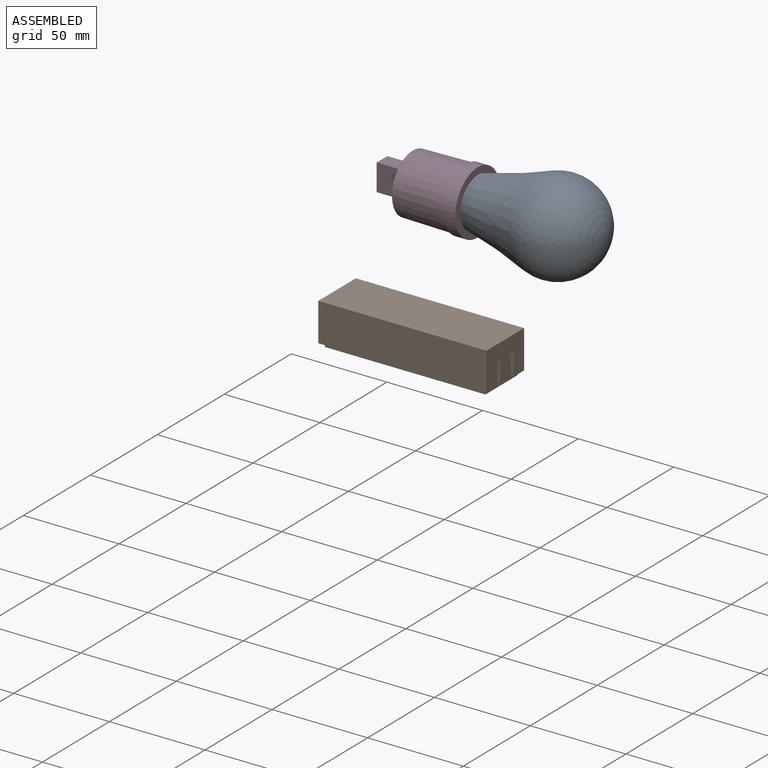
[diagram: assembled view]
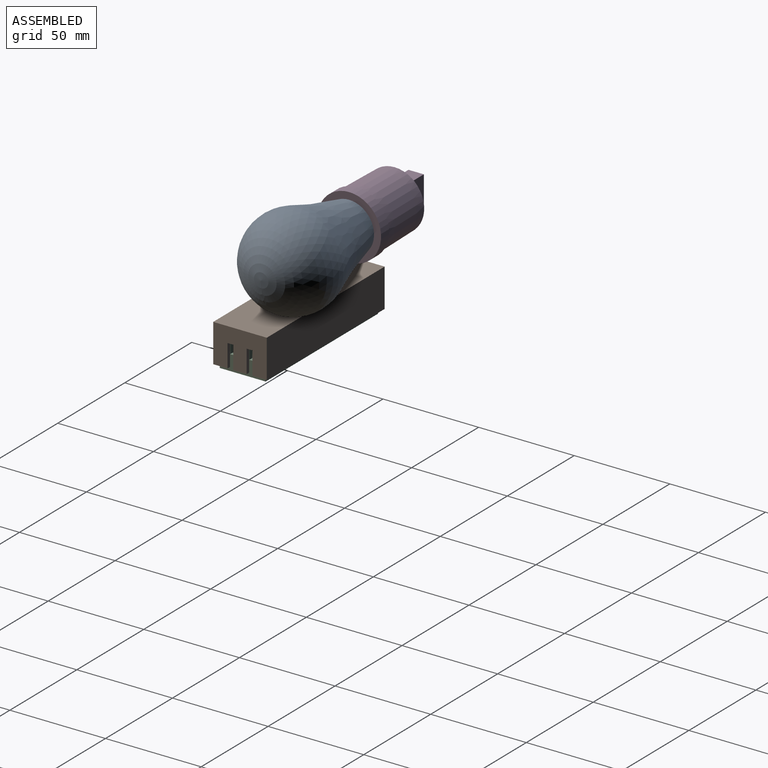
[diagram: assembled view, second angle]
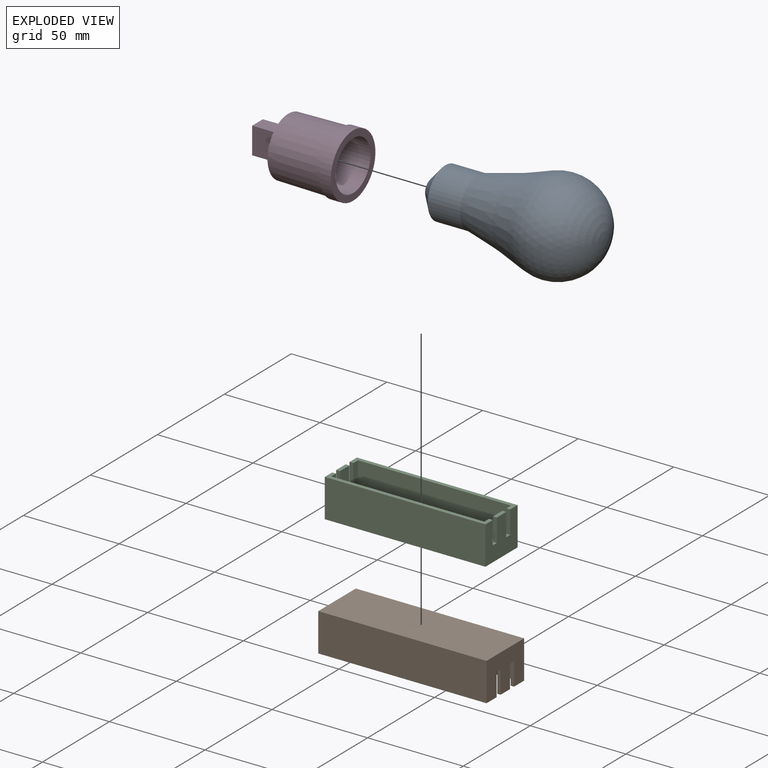
[diagram: exploded view]
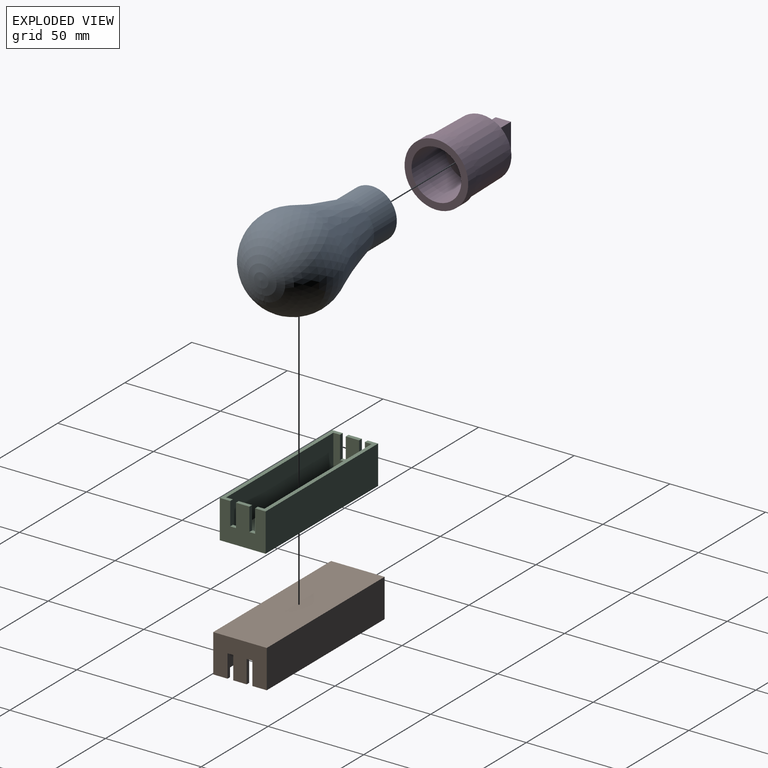
[diagram: exploded view, second angle]
ASSEMBLY  parts=4 mates=2
PART A: 6 faces, bbox 48x48x90 mm
  f0: plane 10x10mm, normal (0,0,-1), area 78.5mm2, adj f1
  f1: cone r=5mm half-angle=48.8deg, axis (0,0,1), area 601.1mm2, adj f0,f2
  f2: cylinder r=13mm len=26mm, axis (0,0,1), area 1388.6mm2, adj f1,f3
  f3: cone r=13mm half-angle=14deg, axis (0,0,1), area 2007.7mm2, adj f2,f4
  f4: cone r=18mm half-angle=18.3deg, axis (0,0,1), area 1951.6mm2, adj f3,f5
  f5: sphere r=24mm, area 4756.1mm2, adj f4
PART B: 26 faces, bbox 88x28x20 mm
  f0: plane 28x20mm, normal (-1,0,0), area 488mm2, adj f4,f5,f7,f8,f9,f12,f20,f21
  f1: plane 28x20mm, normal (1,0,0), area 488mm2, adj f4,f6,f7,f8,f9,f12,f14,f15
  f2: plane 24.4x18mm, normal (1,0,0), area 367.2mm2, adj f4,f5,f10,f11,f12,f13,f20,f21
  f3: plane 24.4x18mm, normal (-1,0,0), area 367.2mm2, adj f4,f6,f10,f11,f12,f13,f14,f15
  f4: plane 88x7.5mm, normal (0,0,1), area 178.9mm2, adj f0,f1,f2,f3,f7,f10,f17,f24
  f5: plane 7x1.8mm, normal (0,0,1), area 12.6mm2, adj f0,f2,f20,f25
  f6: plane 7x1.8mm, normal (0,0,1), area 12.6mm2, adj f1,f3,f16,f18
  f7: plane 88x20mm, normal (0,1,0), area 1760mm2, adj f0,f1,f4,f9
  f8: plane 88x20mm, normal (0,-1,0), area 1760mm2, adj f0,f1,f9,f12
  f9: plane 88x28mm, normal (0,0,-1), area 2464mm2, adj f0,f1,f7,f8
  f10: plane 84.4x18mm, normal (0,-1,0), area 1519.2mm2, adj f2,f3,f4,f13
  f11: plane 84.4x18mm, normal (0,1,0), area 1519.2mm2, adj f2,f3,f12,f13
  f12: plane 88x7.5mm, normal (0,0,1), area 178.9mm2, adj f0,f1,f2,f3,f8,f11,f15,f21
  f13: plane 84.4x24.4mm, normal (0,0,1), area 2059.4mm2, adj f2,f3,f10,f11
  f14: plane 3x1.8mm, normal (0,0,1), area 5.4mm2, adj f1,f3,f15,f16
  f15: plane 12x1.8mm, normal (0,1,0), area 21.6mm2, adj f1,f3,f12,f14
  f16: plane 12x1.8mm, normal (0,-1,0), area 21.6mm2, adj f1,f3,f6,f14
  f17: plane 12x1.8mm, normal (0,-1,0), area 21.6mm2, adj f1,f3,f4,f19
  f18: plane 12x1.8mm, normal (0,1,0), area 21.6mm2, adj f1,f3,f6,f19
  f19: plane 3x1.8mm, normal (0,0,1), area 5.4mm2, adj f1,f3,f17,f18
  f20: plane 12x1.8mm, normal (0,-1,0), area 21.6mm2, adj f0,f2,f5,f22
  f21: plane 12x1.8mm, normal (0,1,0), area 21.6mm2, adj f0,f2,f12,f22
  f22: plane 3x1.8mm, normal (0,0,1), area 5.4mm2, adj f0,f2,f20,f21
  f23: plane 3x1.8mm, normal (0,0,1), area 5.4mm2, adj f0,f2,f24,f25
  f24: plane 12x1.8mm, normal (0,-1,0), area 21.6mm2, adj f0,f2,f4,f23
  f25: plane 12x1.8mm, normal (0,1,0), area 21.6mm2, adj f0,f2,f5,f23
PART C: 26 faces, bbox 84x24x20 mm
  f0: plane 24x20mm, normal (-1,0,0), area 408mm2, adj f4,f5,f7,f8,f9,f12,f20,f21
  f1: plane 24x20mm, normal (1,0,0), area 408mm2, adj f4,f6,f7,f8,f9,f12,f14,f15
  f2: plane 20x18mm, normal (1,0,0), area 288mm2, adj f4,f5,f10,f11,f12,f13,f20,f21
  f3: plane 20x18mm, normal (-1,0,0), area 288mm2, adj f4,f6,f10,f11,f12,f13,f14,f15
  f4: plane 84x5.5mm, normal (0,0,1), area 182mm2, adj f0,f1,f2,f3,f8,f10,f17,f24
  f5: plane 7x2mm, normal (0,0,1), area 14mm2, adj f0,f2,f22,f25
  f6: plane 7x2mm, normal (0,0,1), area 14mm2, adj f1,f3,f14,f18
  f7: plane 84x20mm, normal (0,-1,0), area 1680mm2, adj f0,f1,f9,f12
  f8: plane 84x20mm, normal (0,1,0), area 1680mm2, adj f0,f1,f4,f9
  f9: plane 84x24mm, normal (0,0,-1), area 2016mm2, adj f0,f1,f7,f8
  f10: plane 80x18mm, normal (0,-1,0), area 1440mm2, adj f2,f3,f4,f13
  f11: plane 80x18mm, normal (0,1,0), area 1440mm2, adj f2,f3,f12,f13
  f12: plane 84x5.5mm, normal (0,0,1), area 182mm2, adj f0,f1,f2,f3,f7,f11,f16,f20
  f13: plane 80x20mm, normal (0,0,1), area 1600mm2, adj f2,f3,f10,f11
  f14: plane 12x2mm, normal (0,-1,0), area 24mm2, adj f1,f3,f6,f15
  f15: plane 3x2mm, normal (0,0,1), area 6mm2, adj f1,f3,f14,f16
  f16: plane 12x2mm, normal (0,1,0), area 24mm2, adj f1,f3,f12,f15
  f17: plane 12x2mm, normal (0,-1,0), area 24mm2, adj f1,f3,f4,f19
  f18: plane 12x2mm, normal (0,1,0), area 24mm2, adj f1,f3,f6,f19
  f19: plane 3x2mm, normal (0,0,1), area 6mm2, adj f1,f3,f17,f18
  f20: plane 12x2mm, normal (0,1,0), area 24mm2, adj f0,f2,f12,f21
  f21: plane 3x2mm, normal (0,0,1), area 6mm2, adj f0,f2,f20,f22
  f22: plane 12x2mm, normal (0,-1,0), area 24mm2, adj f0,f2,f5,f21
  f23: plane 3x2mm, normal (0,0,1), area 6mm2, adj f0,f2,f24,f25
  f24: plane 12x2mm, normal (0,-1,0), area 24mm2, adj f0,f2,f4,f23
  f25: plane 12x2mm, normal (0,1,0), area 24mm2, adj f0,f2,f5,f23
PART D: 12 faces, bbox 33.3x33.3x50 mm
  f0: plane 30.81x30.81mm, normal (0,0,1), area 633.7mm2, adj f4,f5,f6,f7,f8
  f1: cylinder r=16.65mm len=33.3mm, axis (0,0,-1), area 627.7mm2, adj f2,f3
  f2: plane 33.3x33.3mm, normal (0,0,1), area 77.2mm2, adj f1,f4
  f3: plane 33.3x33.3mm, normal (0,0,-1), area 340mm2, adj f1,f10
  f4: cone r=16mm half-angle=1deg, axis (0,0,-1), area 2753.9mm2, adj f0,f2
  f5: plane 16x14mm, normal (0,1,0), area 224mm2, adj f0,f6,f8,f9
  f6: plane 16x8mm, normal (-1,0,0), area 128mm2, adj f0,f5,f7,f9
  f7: plane 16x14mm, normal (0,-1,0), area 224mm2, adj f0,f6,f8,f9
  f8: plane 16x8mm, normal (1,0,0), area 128mm2, adj f0,f5,f7,f9
  f9: plane 14x8mm, normal (0,0,1), area 112mm2, adj f5,f6,f7,f8
  f10: cylinder r=13mm len=26mm, axis (0,0,-1), area 2042mm2, adj f3,f11
  f11: plane 26x26mm, normal (0,0,-1), area 530.9mm2, adj f10
PLACE A rot(axis=(0,1,0),90deg) t=(-35.87,-0.88,22.38)mm
PLACE B rot(axis=(0,-1,0),180deg) t=(-19.33,-32.4,2.47)mm
PLACE C t=(-19.33,-32.4,-15.53)mm
PLACE D rot(axis=(0,-1,0),90deg) t=(-11.87,-0.88,22.38)mm
MATE fastened C.f4 <-> B.f13  axis (0,0,1) through (-19.33,-32.4,-22.53)mm
MATE fastened A.f1 <-> D.f10  axis (1,0,0) through (-11.87,-0.88,22.38)mm
